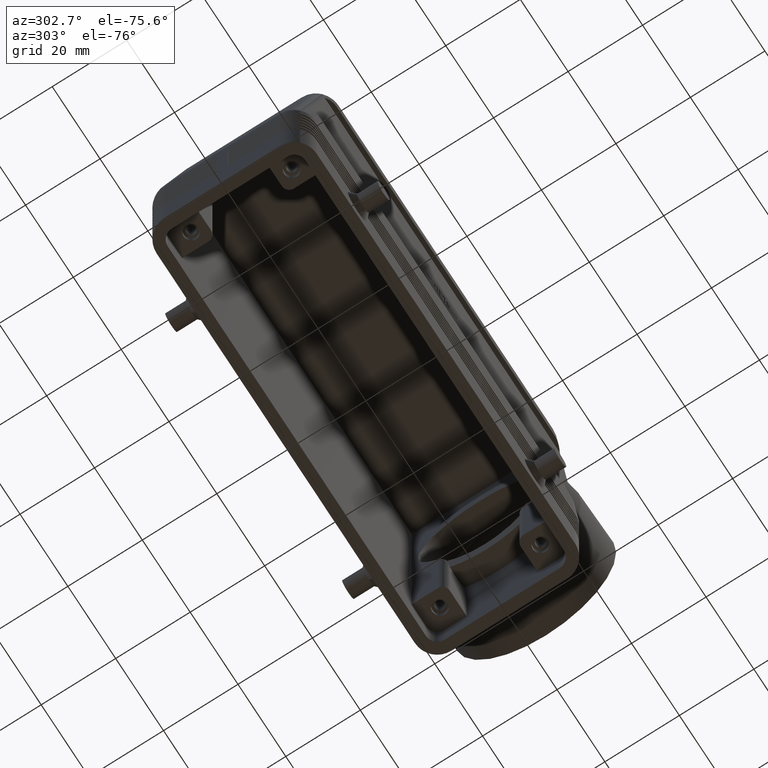
[diagram: clean part render]
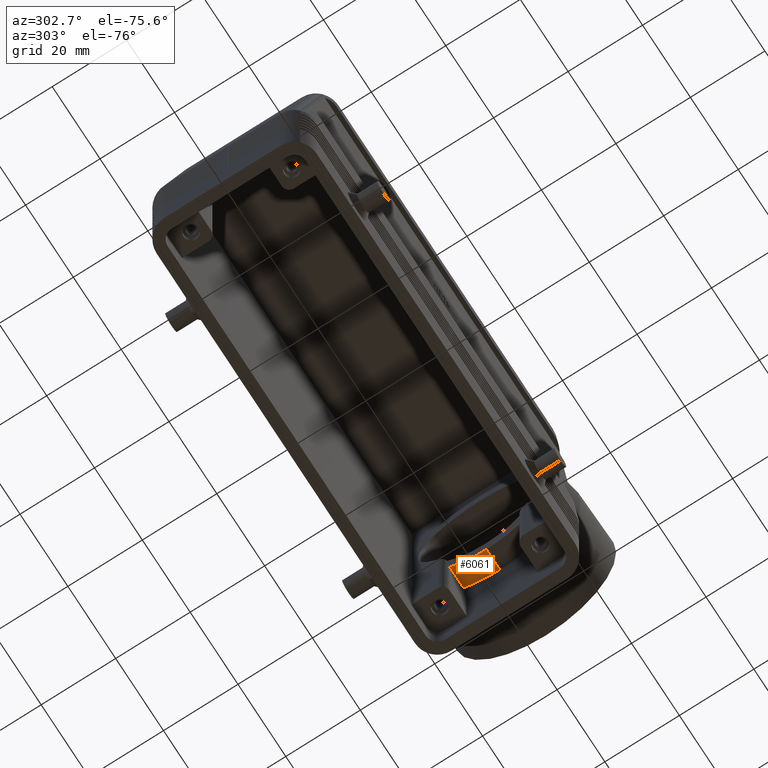
[diagram: same view with one face highlighted and labeled with its STEP entity id]
A machine part, auxiliary view. The second image highlights one B-rep face of the part: STEP entity #6061.
In plain terms, the highlighted conical surface has half-angle 10 deg.
Its self-contained STEP definition (entity closure, byte-faithful):
#5395=CARTESIAN_POINT('',(56.019036138086840,2.536719E-015,27.915196823644997));
#5396=VERTEX_POINT('',#5395);
#5397=CARTESIAN_POINT('',(50.389916217068993,2.416972E-015,27.763202695505655));
#5398=VERTEX_POINT('',#5397);
#5399=CARTESIAN_POINT('',(56.019036138086840,2.536719E-015,27.915196823644997));
#5400=DIRECTION('',(-0.999635661364165,-2.126507E-017,-0.026991564034502));
#5401=VECTOR('',#5400,5.631171574387412);
#5402=LINE('',#5399,#5401);
#5403=EDGE_CURVE('',#5396,#5398,#5402,.T.);
#5555=CARTESIAN_POINT('',(50.000000000000007,9.500000000000000,30.150957403505654));
#5556=VERTEX_POINT('',#5555);
#5563=CARTESIAN_POINT('',(49.901891404832803,9.502407773438815,30.151955723819611));
#5564=VERTEX_POINT('',#5563);
#5565=CARTESIAN_POINT('',(50.000000000000007,9.500000000000000,30.150957403505654));
#5566=CARTESIAN_POINT('',(49.967463928613085,9.500000000000000,30.150857722643405));
#5567=CARTESIAN_POINT('',(49.934715666643676,9.500795661531868,30.151185997562546));
#5568=CARTESIAN_POINT('',(49.901891404832803,9.502407773438815,30.151955723819611));
#5569=B_SPLINE_CURVE_WITH_KNOTS('',3,(#5565,#5566,#5567,#5568),.UNSPECIFIED.,.F.,.U.,(4,4),(0.695500767630956,0.705037592075787),.UNSPECIFIED.);
#5570=EDGE_CURVE('',#5556,#5564,#5569,.T.);
#5930=CARTESIAN_POINT('',(46.439285740775595,0.0,47.100499237362769));
#5931=DIRECTION('',(-0.979761913591865,0.0,-0.200166412454252));
#5932=DIRECTION('',(0.200166412454252,0.0,-0.979761913591865));
#5933=AXIS2_PLACEMENT_3D('',#5930,#5931,#5932);
#5934=CIRCLE('',#5933,19.736730192915370);
#5935=EDGE_CURVE('',#5564,#5398,#5934,.T.);
#6029=CARTESIAN_POINT('',(51.338095308734914,0.0,48.101331299634026));
#6030=DIRECTION('',(0.979761913591866,0.0,0.200166412454252));
#6031=DIRECTION('',(0.200166412454252,0.0,-0.979761913591866));
#6032=AXIS2_PLACEMENT_3D('',#6029,#6030,#6031);
#6033=CONICAL_SURFACE('',#6032,20.618365096457691,9.999999999999973);
#6034=ORIENTED_EDGE('',*,*,#5403,.T.);
#6035=ORIENTED_EDGE('',*,*,#5935,.F.);
#6036=ORIENTED_EDGE('',*,*,#5570,.F.);
#6037=CARTESIAN_POINT('',(55.616967165499076,9.500000000000000,30.175717936193969));
#6038=VERTEX_POINT('',#6037);
#6039=CARTESIAN_POINT('',(55.616967165499076,9.500000000000000,30.175717936193969));
#6040=CARTESIAN_POINT('',(52.722782874464791,9.500000000000000,30.159299201795221));
#6041=CARTESIAN_POINT('',(50.000000000000007,9.500000000000000,30.150957403505654));
#6049=(BOUNDED_CURVE()B_SPLINE_CURVE(2,(#6039,#6040,#6041),.UNSPECIFIED.,.F.,.U.)B_SPLINE_CURVE_WITH_KNOTS((3,3),(0.757411294524649,1.340506026237385),.UNSPECIFIED.)CURVE()GEOMETRIC_REPRESENTATION_ITEM()RATIONAL_B_SPLINE_CURVE((1.001046335661191,1.000968992611208,1.000152429894915))REPRESENTATION_ITEM(''));
#6050=EDGE_CURVE('',#6038,#5556,#6049,.T.);
#6051=ORIENTED_EDGE('',*,*,#6050,.F.);
#6052=CARTESIAN_POINT('',(52.373984068316737,4.440892E-015,48.408489571463605));
#6053=DIRECTION('',(0.984547601421650,9.466331E-030,0.175117162308198));
#6054=DIRECTION('',(-0.175117162308198,1.243297E-013,0.984547601421650));
#6055=AXIS2_PLACEMENT_3D('',#6052,#6053,#6054);
#6056=ELLIPSE('',#6055,20.814933395020269,20.807954232688509);
#6057=EDGE_CURVE('',#5396,#6038,#6056,.T.);
#6058=ORIENTED_EDGE('',*,*,#6057,.F.);
#6059=EDGE_LOOP('',(#6034,#6035,#6036,#6051,#6058));
#6060=FACE_OUTER_BOUND('',#6059,.T.);
#6061=ADVANCED_FACE('',(#6060),#6033,.T.);